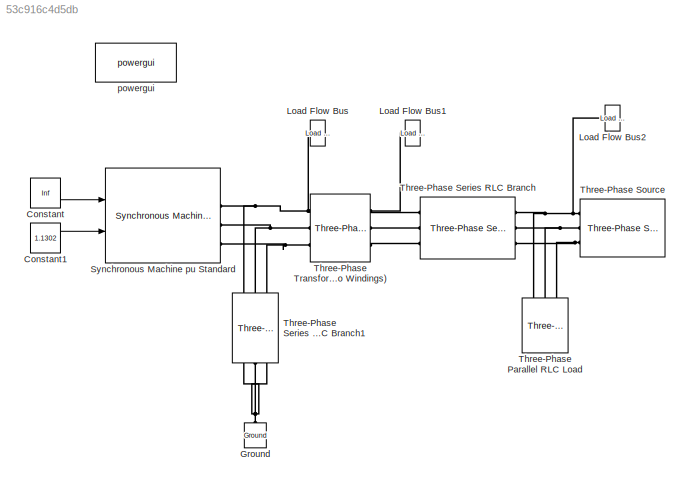
MODEL slx_53c916c4d5db
KIND model
CONFIG AbsTol = auto
CONFIG EnableMultiTasking = off
CONFIG FixedStep = auto
CONFIG MaxStep = auto
CONFIG MinStep = auto
CONFIG RelTol = 1e-3
CONFIG SampleTimeConstraint = Unconstrained
CONFIG Solver = VariableStepDiscrete
CONFIG SolverName = VariableStepDiscrete
CONFIG StartTime = 0.0
CONFIG StopTime = 10.0
BLOCK [Constant] Constant
  Value = Inf
BLOCK [Constant] Constant1
  Value = 1.1302
BLOCK [Reference] Ground  REF=powerlib/Elements/Ground
  Ports = [0, 0, 0, 0, 0, 1]
  SourceBlock = powerlib/Elements/Ground
  SourceProductBaseCode = PS
  SourceProductName = Simscape Power Systems
  SourceType = Ground
BLOCK [Reference] Load Flow Bus  REF=powerlib/Measurements/Load Flow Bus
  AttributesFormatString = %<ID>\n%<Vbase>V\n%<VLF>pu\n%<angleLF>deg.
  Ports = [0, 0, 0, 0, 0, 1]
  SourceBlock = powerlib/Measurements/Load Flow Bus
  SourceProductBaseCode = PS
  SourceProductName = Simscape Power Systems
  SourceType = Load Flow Bus
BLOCK [Reference] Load Flow Bus1  REF=powerlib/Measurements/Load Flow Bus
  AttributesFormatString = %<ID>\n%<Vbase>V\n%<VLF>pu\n%<angleLF>deg.
  Ports = [0, 0, 0, 0, 0, 1]
  SourceBlock = powerlib/Measurements/Load Flow Bus
  SourceProductBaseCode = PS
  SourceProductName = Simscape Power Systems
  SourceType = Load Flow Bus
BLOCK [Reference] Load Flow Bus2  REF=powerlib/Measurements/Load Flow Bus
  AttributesFormatString = %<ID>\n%<Vbase>V\n%<VLF>pu\n%<angleLF>deg.
  Ports = [0, 0, 0, 0, 0, 1]
  SourceBlock = powerlib/Measurements/Load Flow Bus
  SourceProductBaseCode = PS
  SourceProductName = Simscape Power Systems
  SourceType = Load Flow Bus
BLOCK [Reference] Synchronous Machine pu Standard  REF=powerlib/Machines/Synchronous Machine
pu Standard
  Ports = [2, 1, 0, 0, 0, 0, 3]
  SourceBlock = powerlib/Machines/Synchronous Machine\npu Standard
  SourceProductBaseCode = PS
  SourceProductName = Simscape Power Systems
  SourceType = Synchronous Machine
BLOCK [Reference] Three-Phase Parallel RLC Load  REF=powerlib/Elements/Three-Phase
Parallel RLC Load
  AttributesFormatString = \n
  Ports = [0, 0, 0, 0, 0, 3]
  SourceBlock = powerlib/Elements/Three-Phase\nParallel RLC Load
  SourceProductBaseCode = PS
  SourceProductName = Simscape Power Systems
  SourceType = Three-Phase Parallel RLC Load
BLOCK [Reference] Three-Phase Series RLC Branch  REF=powerlib/Elements/Three-Phase
Series RLC Branch
  AttributesFormatString = \n
  Ports = [0, 0, 0, 0, 0, 3, 3]
  SourceBlock = powerlib/Elements/Three-Phase\nSeries RLC Branch
  SourceProductBaseCode = PS
  SourceProductName = Simscape Power Systems
  SourceType = Three-Phase Series RLC Branch
BLOCK [Reference] Three-Phase Series RLC Branch1  REF=powerlib/Elements/Three-Phase
Series RLC Branch
  AttributesFormatString = \n
  Ports = [0, 0, 0, 0, 0, 3, 3]
  SourceBlock = powerlib/Elements/Three-Phase\nSeries RLC Branch
  SourceProductBaseCode = PS
  SourceProductName = Simscape Power Systems
  SourceType = Three-Phase Series RLC Branch
BLOCK [Reference] Three-Phase Source  REF=powerlib/Electrical
Sources/Three-Phase Source
  Ports = [0, 0, 0, 0, 0, 0, 3]
  SourceBlock = powerlib/Electrical\nSources/Three-Phase Source
  SourceProductBaseCode = PS
  SourceProductName = Simscape Power Systems
  SourceType = Three-Phase Source
BLOCK [Reference] Three-Phase Transformer (Two Windings)  REF=powerlib/Elements/Three-Phase
Transformer
(Two Windings)
  Ports = [0, 0, 0, 0, 0, 3, 3]
  SourceBlock = powerlib/Elements/Three-Phase\nTransformer\n(Two Windings)
  SourceProductBaseCode = PS
  SourceProductName = Simscape Power Systems
  SourceType = Three-Phase Transformer (Two Windings)
BLOCK [Reference] powergui  REF=powerlib/powergui
  Ports = []
  Priority = 1
  SourceBlock = powerlib/powergui
  SourceProductBaseCode = PS
  SourceProductName = Simscape Power Systems
  SourceType = PSB option menu block
LINE Constant1:1 -> Synchronous Machine pu Standard:2
LINE Constant:1 -> Synchronous Machine pu Standard:1
PNET net1: Ground:LConn1 -- Three-Phase Series RLC Branch1:RConn1 -- Three-Phase Series RLC Branch1:RConn2 -- Three-Phase Series RLC Branch1:RConn3
PNET net2: Load Flow Bus1:LConn1 -- Three-Phase Series RLC Branch:LConn1 -- Three-Phase Transformer (Two Windings):RConn1
PNET net3: Load Flow Bus2:LConn1 -- Three-Phase Parallel RLC Load:LConn1 -- Three-Phase Series RLC Branch:RConn1 -- Three-Phase Source:RConn1
PNET net4: Load Flow Bus:LConn1 -- Synchronous Machine pu Standard:RConn1 -- Three-Phase Series RLC Branch1:LConn1 -- Three-Phase Transformer (Two Windings):LConn1
PNET net5: Synchronous Machine pu Standard:RConn2 -- Three-Phase Series RLC Branch1:LConn2 -- Three-Phase Transformer (Two Windings):LConn2
PNET net6: Synchronous Machine pu Standard:RConn3 -- Three-Phase Series RLC Branch1:LConn3 -- Three-Phase Transformer (Two Windings):LConn3
PNET net7: Three-Phase Parallel RLC Load:LConn2 -- Three-Phase Series RLC Branch:RConn2 -- Three-Phase Source:RConn2
PNET net8: Three-Phase Parallel RLC Load:LConn3 -- Three-Phase Series RLC Branch:RConn3 -- Three-Phase Source:RConn3
PLINE Three-Phase Series RLC Branch:LConn2 -- Three-Phase Transformer (Two Windings):RConn2
PLINE Three-Phase Series RLC Branch:LConn3 -- Three-Phase Transformer (Two Windings):RConn3
note: PNET lines group multi-terminal physical nets as a canonical sorted terminal list (undirected conserving connections); 2-terminal nets keep the pairwise PLINE form
